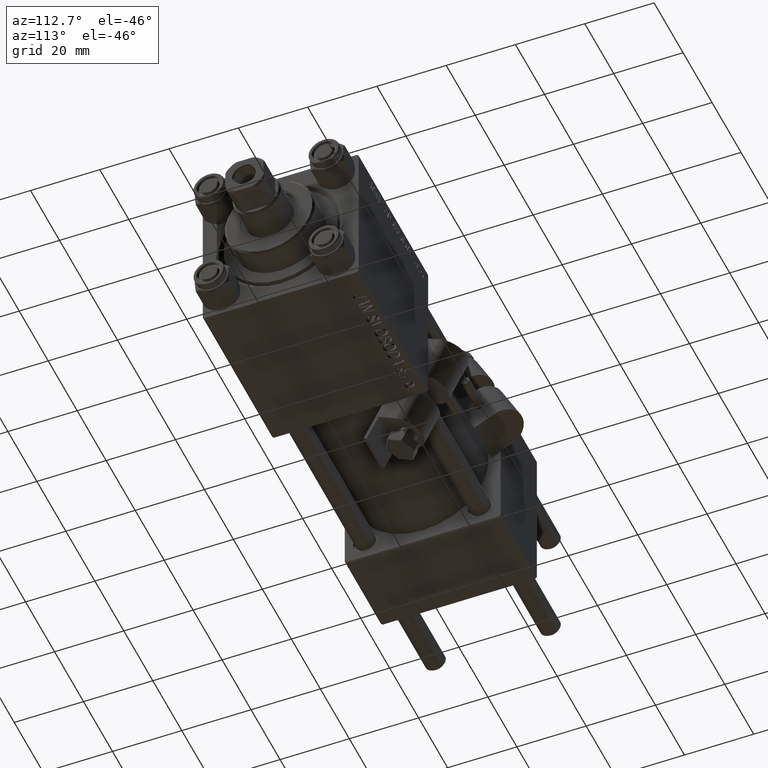
[diagram: clean part render]
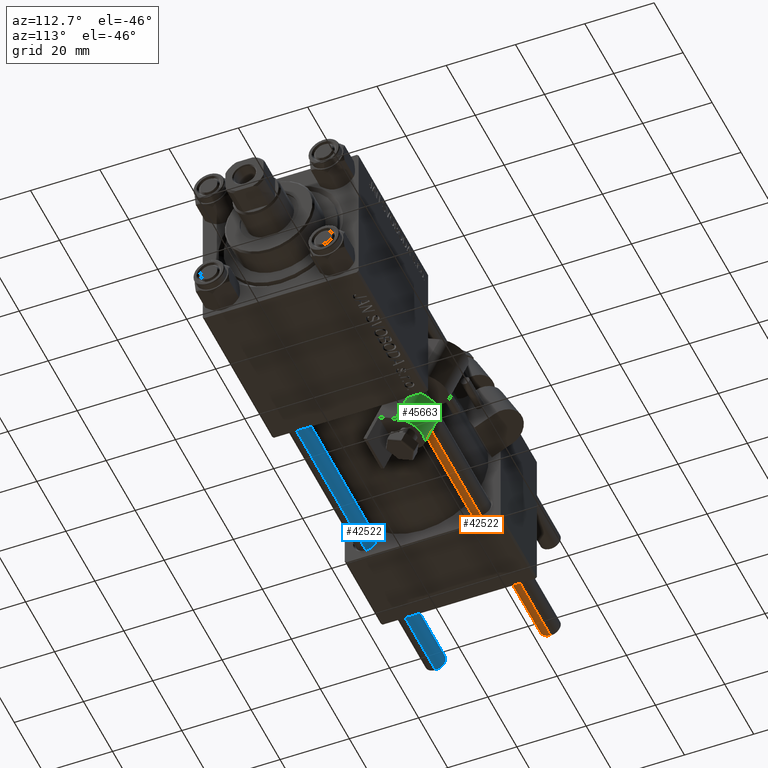
[diagram: same view with three faces highlighted in distinct colors, each labeled with its STEP entity id]
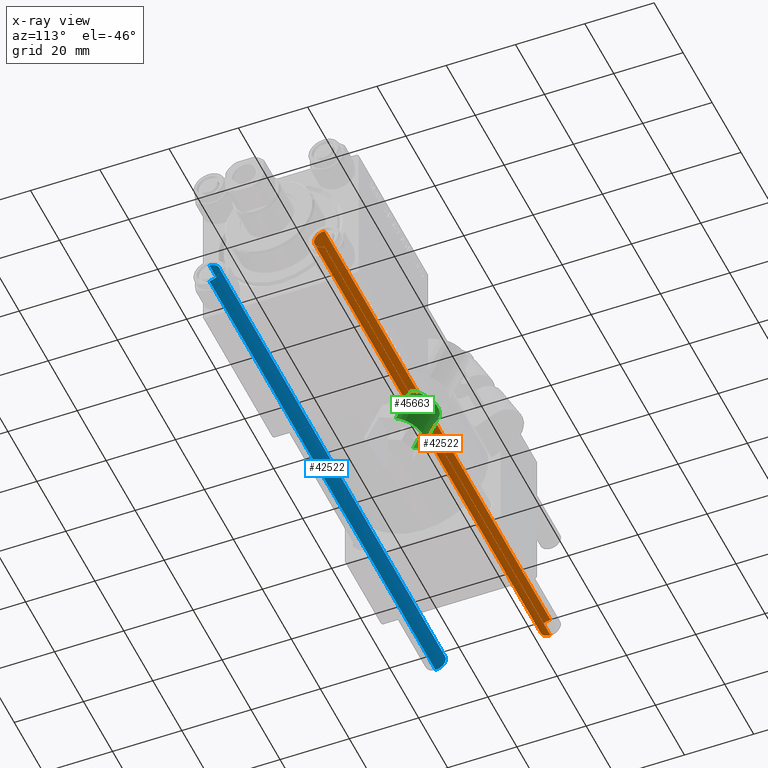
[diagram: x-ray of the same camera — body ghosted, the three highlighted faces saturated]
A machine part, auxiliary view with three faces highlighted in distinct colors.
The next image is the same camera in x-ray (body ghosted, the three faces saturated) — at least one of them is partly hidden behind the body in this view.
Their STEP definitions:

[orange] entity #42522 — the highlighted cylindrical surface (edge-blend (fillet) strip) has radius 3 mm, axis along (1, 0, -0).
#949 = CARTESIAN_POINT ( 'NONE',  ( 3.000000000000000444, 3.673940397442060361E-16, 156.5000000000000284 ) ) ;
#1416 = CIRCLE ( 'NONE', #10446, 3.000000000000000444 ) ;
#5304 = EDGE_CURVE ( 'NONE', #40745, #6461, #48938, .T. ) ;
#6177 = CARTESIAN_POINT ( 'NONE',  ( -3.000000000000000444, 0.000000000000000000, 0.4999999999999726885 ) ) ;
#6461 = VERTEX_POINT ( 'NONE', #6177 ) ;
#7711 = DIRECTION ( 'NONE',  ( -1.000000000000000000, 0.000000000000000000, 0.000000000000000000 ) ) ;
#7826 = ORIENTED_EDGE ( 'NONE', *, *, #24322, .T. ) ;
#10446 = AXIS2_PLACEMENT_3D ( 'NONE', #23934, #36292, #31686 ) ;
#13989 = LINE ( 'NONE', #21734, #46801 ) ;
#14735 = CARTESIAN_POINT ( 'NONE',  ( 0.000000000000000000, 0.000000000000000000, 156.5000000000000284 ) ) ;
#14952 = CYLINDRICAL_SURFACE ( 'NONE', #50137, 3.000000000000000444 ) ;
#15214 = DIRECTION ( 'NONE',  ( -0.000000000000000000, -0.000000000000000000, -1.000000000000000000 ) ) ;
#17265 = DIRECTION ( 'NONE',  ( -0.000000000000000000, -0.000000000000000000, -1.000000000000000000 ) ) ;
#17855 = DIRECTION ( 'NONE',  ( -0.000000000000000000, -0.000000000000000000, -1.000000000000000000 ) ) ;
#19637 = EDGE_LOOP ( 'NONE', ( #40348, #7826, #30996, #22307 ) ) ;
#21696 = VERTEX_POINT ( 'NONE', #949 ) ;
#21734 = CARTESIAN_POINT ( 'NONE',  ( 3.000000000000000444, 3.673940397442060361E-16, 157.0000000000000000 ) ) ;
#22307 = ORIENTED_EDGE ( 'NONE', *, *, #34697, .T. ) ;
#23934 = CARTESIAN_POINT ( 'NONE',  ( 0.000000000000000000, 0.000000000000000000, 0.4999999999999726885 ) ) ;
#24322 = EDGE_CURVE ( 'NONE', #21696, #40745, #27516, .T. ) ;
#27516 = CIRCLE ( 'NONE', #30790, 3.000000000000000444 ) ;
#29384 = CARTESIAN_POINT ( 'NONE',  ( -3.000000000000000444, 0.000000000000000000, 157.0000000000000000 ) ) ;
#30463 = DIRECTION ( 'NONE',  ( 0.000000000000000000, 0.000000000000000000, -1.000000000000000000 ) ) ;
#30790 = AXIS2_PLACEMENT_3D ( 'NONE', #14735, #30463, #50264 ) ;
#30996 = ORIENTED_EDGE ( 'NONE', *, *, #5304, .T. ) ;
#31686 = DIRECTION ( 'NONE',  ( 1.000000000000000000, 0.000000000000000000, 0.000000000000000000 ) ) ;
#33543 = FACE_OUTER_BOUND ( 'NONE', #19637, .T. ) ;
#34211 = CARTESIAN_POINT ( 'NONE',  ( -3.000000000000000444, 0.000000000000000000, 156.5000000000000284 ) ) ;
#34697 = EDGE_CURVE ( 'NONE', #6461, #49903, #1416, .T. ) ;
#36292 = DIRECTION ( 'NONE',  ( -0.000000000000000000, -0.000000000000000000, 1.000000000000000000 ) ) ;
#40348 = ORIENTED_EDGE ( 'NONE', *, *, #41326, .F. ) ;
#40745 = VERTEX_POINT ( 'NONE', #34211 ) ;
#41326 = EDGE_CURVE ( 'NONE', #21696, #49903, #13989, .T. ) ;
#42522 = ADVANCED_FACE ( 'NONE', ( #33543 ), #14952, .T. ) ;
#46604 = CARTESIAN_POINT ( 'NONE',  ( 3.000000000000000444, 3.673940397442060361E-16, 0.4999999999999726885 ) ) ;
#46798 = VECTOR ( 'NONE', #17265, 1000.000000000000000 ) ;
#46801 = VECTOR ( 'NONE', #17855, 1000.000000000000000 ) ;
#48938 = LINE ( 'NONE', #29384, #46798 ) ;
#49903 = VERTEX_POINT ( 'NONE', #46604 ) ;
#50137 = AXIS2_PLACEMENT_3D ( 'NONE', #50483, #15214, #7711 ) ;
#50264 = DIRECTION ( 'NONE',  ( 1.000000000000000000, 0.000000000000000000, 0.000000000000000000 ) ) ;
#50483 = CARTESIAN_POINT ( 'NONE',  ( 0.000000000000000000, 0.000000000000000000, 157.0000000000000000 ) ) ;

[blue] entity #42522 — the highlighted cylindrical surface (edge-blend (fillet) strip) has radius 3 mm, axis along (-1, 0, 0).
#949 = CARTESIAN_POINT ( 'NONE',  ( 3.000000000000000444, 3.673940397442060361E-16, 156.5000000000000284 ) ) ;
#1416 = CIRCLE ( 'NONE', #10446, 3.000000000000000444 ) ;
#5304 = EDGE_CURVE ( 'NONE', #40745, #6461, #48938, .T. ) ;
#6177 = CARTESIAN_POINT ( 'NONE',  ( -3.000000000000000444, 0.000000000000000000, 0.4999999999999726885 ) ) ;
#6461 = VERTEX_POINT ( 'NONE', #6177 ) ;
#7711 = DIRECTION ( 'NONE',  ( -1.000000000000000000, 0.000000000000000000, 0.000000000000000000 ) ) ;
#7826 = ORIENTED_EDGE ( 'NONE', *, *, #24322, .T. ) ;
#10446 = AXIS2_PLACEMENT_3D ( 'NONE', #23934, #36292, #31686 ) ;
#13989 = LINE ( 'NONE', #21734, #46801 ) ;
#14735 = CARTESIAN_POINT ( 'NONE',  ( 0.000000000000000000, 0.000000000000000000, 156.5000000000000284 ) ) ;
#14952 = CYLINDRICAL_SURFACE ( 'NONE', #50137, 3.000000000000000444 ) ;
#15214 = DIRECTION ( 'NONE',  ( -0.000000000000000000, -0.000000000000000000, -1.000000000000000000 ) ) ;
#17265 = DIRECTION ( 'NONE',  ( -0.000000000000000000, -0.000000000000000000, -1.000000000000000000 ) ) ;
#17855 = DIRECTION ( 'NONE',  ( -0.000000000000000000, -0.000000000000000000, -1.000000000000000000 ) ) ;
#19637 = EDGE_LOOP ( 'NONE', ( #40348, #7826, #30996, #22307 ) ) ;
#21696 = VERTEX_POINT ( 'NONE', #949 ) ;
#21734 = CARTESIAN_POINT ( 'NONE',  ( 3.000000000000000444, 3.673940397442060361E-16, 157.0000000000000000 ) ) ;
#22307 = ORIENTED_EDGE ( 'NONE', *, *, #34697, .T. ) ;
#23934 = CARTESIAN_POINT ( 'NONE',  ( 0.000000000000000000, 0.000000000000000000, 0.4999999999999726885 ) ) ;
#24322 = EDGE_CURVE ( 'NONE', #21696, #40745, #27516, .T. ) ;
#27516 = CIRCLE ( 'NONE', #30790, 3.000000000000000444 ) ;
#29384 = CARTESIAN_POINT ( 'NONE',  ( -3.000000000000000444, 0.000000000000000000, 157.0000000000000000 ) ) ;
#30463 = DIRECTION ( 'NONE',  ( 0.000000000000000000, 0.000000000000000000, -1.000000000000000000 ) ) ;
#30790 = AXIS2_PLACEMENT_3D ( 'NONE', #14735, #30463, #50264 ) ;
#30996 = ORIENTED_EDGE ( 'NONE', *, *, #5304, .T. ) ;
#31686 = DIRECTION ( 'NONE',  ( 1.000000000000000000, 0.000000000000000000, 0.000000000000000000 ) ) ;
#33543 = FACE_OUTER_BOUND ( 'NONE', #19637, .T. ) ;
#34211 = CARTESIAN_POINT ( 'NONE',  ( -3.000000000000000444, 0.000000000000000000, 156.5000000000000284 ) ) ;
#34697 = EDGE_CURVE ( 'NONE', #6461, #49903, #1416, .T. ) ;
#36292 = DIRECTION ( 'NONE',  ( -0.000000000000000000, -0.000000000000000000, 1.000000000000000000 ) ) ;
#40348 = ORIENTED_EDGE ( 'NONE', *, *, #41326, .F. ) ;
#40745 = VERTEX_POINT ( 'NONE', #34211 ) ;
#41326 = EDGE_CURVE ( 'NONE', #21696, #49903, #13989, .T. ) ;
#42522 = ADVANCED_FACE ( 'NONE', ( #33543 ), #14952, .T. ) ;
#46604 = CARTESIAN_POINT ( 'NONE',  ( 3.000000000000000444, 3.673940397442060361E-16, 0.4999999999999726885 ) ) ;
#46798 = VECTOR ( 'NONE', #17265, 1000.000000000000000 ) ;
#46801 = VECTOR ( 'NONE', #17855, 1000.000000000000000 ) ;
#48938 = LINE ( 'NONE', #29384, #46798 ) ;
#49903 = VERTEX_POINT ( 'NONE', #46604 ) ;
#50137 = AXIS2_PLACEMENT_3D ( 'NONE', #50483, #15214, #7711 ) ;
#50264 = DIRECTION ( 'NONE',  ( 1.000000000000000000, 0.000000000000000000, 0.000000000000000000 ) ) ;
#50483 = CARTESIAN_POINT ( 'NONE',  ( 0.000000000000000000, 0.000000000000000000, 157.0000000000000000 ) ) ;

[green] entity #45663 — the highlighted cylindrical surface (edge-blend (fillet) strip) has radius 6 mm, axis along (-0, -0.4495, -0.8933).
#1412 = VECTOR ( 'NONE', #21530, 1000.000000000000000 ) ;
#4298 = CARTESIAN_POINT ( 'NONE',  ( 9.740000000000000213, 6.499999999999998224, 6.000000000000000000 ) ) ;
#5684 = ORIENTED_EDGE ( 'NONE', *, *, #29243, .F. ) ;
#6551 = ORIENTED_EDGE ( 'NONE', *, *, #8077, .F. ) ;
#6682 = CIRCLE ( 'NONE', #35520, 5.999999999999998224 ) ;
#7656 = CIRCLE ( 'NONE', #15925, 5.999999999999998224 ) ;
#8077 = EDGE_CURVE ( 'NONE', #33239, #29553, #6682, .T. ) ;
#9403 = CARTESIAN_POINT ( 'NONE',  ( 9.740000000000000213, 6.500000000000000000, -5.999999999999997335 ) ) ;
#12303 = CARTESIAN_POINT ( 'NONE',  ( 9.740000000000000213, 6.499999999999998224, 6.000000000000000000 ) ) ;
#12532 = CARTESIAN_POINT ( 'NONE',  ( 9.740000000000000213, 6.500000000000000000, -5.999999999999997335 ) ) ;
#13185 = ORIENTED_EDGE ( 'NONE', *, *, #22585, .T. ) ;
#15925 = AXIS2_PLACEMENT_3D ( 'NONE', #43728, #17197, #48099 ) ;
#17197 = DIRECTION ( 'NONE',  ( 1.000000000000000000, 0.000000000000000000, 0.000000000000000000 ) ) ;
#18020 = CARTESIAN_POINT ( 'NONE',  ( 9.740000000000000213, 6.499999999999999112, 1.734723475976807094E-15 ) ) ;
#18075 = CARTESIAN_POINT ( 'NONE',  ( 0.000000000000000000, 6.499999999999998224, 6.000000000000000000 ) ) ;
#19542 = LINE ( 'NONE', #12303, #22605 ) ;
#19818 = AXIS2_PLACEMENT_3D ( 'NONE', #18020, #26532, #25772 ) ;
#21530 = DIRECTION ( 'NONE',  ( -1.000000000000000000, -0.000000000000000000, -0.000000000000000000 ) ) ;
#22585 = EDGE_CURVE ( 'NONE', #25679, #44272, #7656, .T. ) ;
#22605 = VECTOR ( 'NONE', #42980, 1000.000000000000000 ) ;
#24204 = EDGE_LOOP ( 'NONE', ( #13185, #5684, #6551, #36391 ) ) ;
#24854 = DIRECTION ( 'NONE',  ( 1.000000000000000000, 0.000000000000000000, 0.000000000000000000 ) ) ;
#25679 = VERTEX_POINT ( 'NONE', #47719 ) ;
#25772 = DIRECTION ( 'NONE',  ( 0.000000000000000000, 0.000000000000000000, 1.000000000000000000 ) ) ;
#26532 = DIRECTION ( 'NONE',  ( -1.000000000000000000, -0.000000000000000000, -0.000000000000000000 ) ) ;
#29243 = EDGE_CURVE ( 'NONE', #29553, #44272, #19542, .T. ) ;
#29553 = VERTEX_POINT ( 'NONE', #4298 ) ;
#32598 = CARTESIAN_POINT ( 'NONE',  ( 9.740000000000000213, 6.499999999999999112, 1.734723475976807094E-15 ) ) ;
#33239 = VERTEX_POINT ( 'NONE', #12532 ) ;
#35520 = AXIS2_PLACEMENT_3D ( 'NONE', #32598, #24854, #43649 ) ;
#36391 = ORIENTED_EDGE ( 'NONE', *, *, #38477, .T. ) ;
#37866 = CYLINDRICAL_SURFACE ( 'NONE', #19818, 5.999999999999998224 ) ;
#38371 = FACE_OUTER_BOUND ( 'NONE', #24204, .T. ) ;
#38477 = EDGE_CURVE ( 'NONE', #33239, #25679, #44439, .T. ) ;
#42980 = DIRECTION ( 'NONE',  ( -1.000000000000000000, -0.000000000000000000, -0.000000000000000000 ) ) ;
#43649 = DIRECTION ( 'NONE',  ( 0.000000000000000000, 0.000000000000000000, -1.000000000000000000 ) ) ;
#43728 = CARTESIAN_POINT ( 'NONE',  ( 0.000000000000000000, 6.499999999999999112, 1.734723475976807094E-15 ) ) ;
#44272 = VERTEX_POINT ( 'NONE', #18075 ) ;
#44439 = LINE ( 'NONE', #9403, #1412 ) ;
#45663 = ADVANCED_FACE ( 'NONE', ( #38371 ), #37866, .T. ) ;
#47719 = CARTESIAN_POINT ( 'NONE',  ( 0.000000000000000000, 6.500000000000000000, -5.999999999999997335 ) ) ;
#48099 = DIRECTION ( 'NONE',  ( 0.000000000000000000, 0.000000000000000000, -1.000000000000000000 ) ) ;